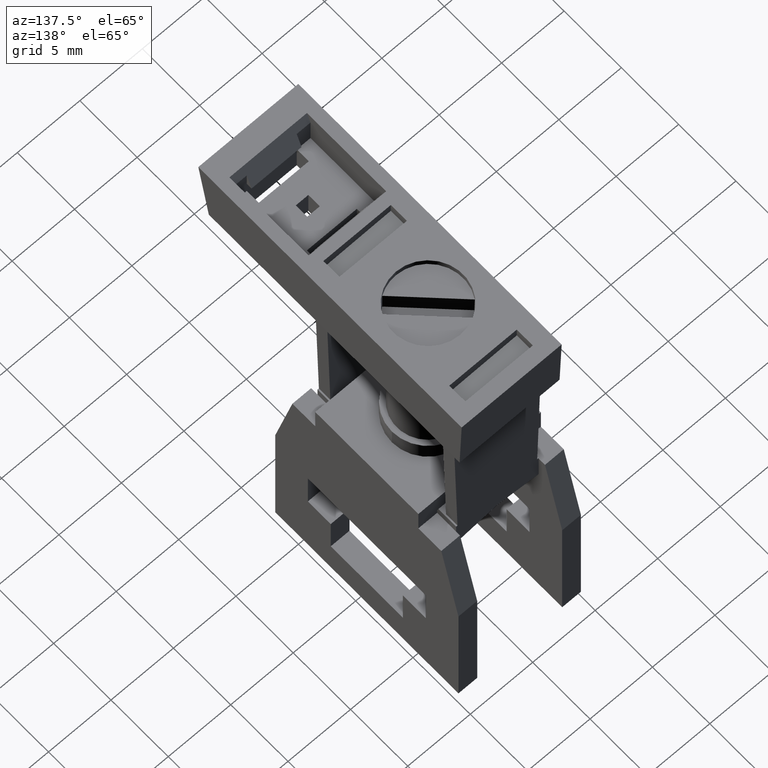
[diagram: clean part render]
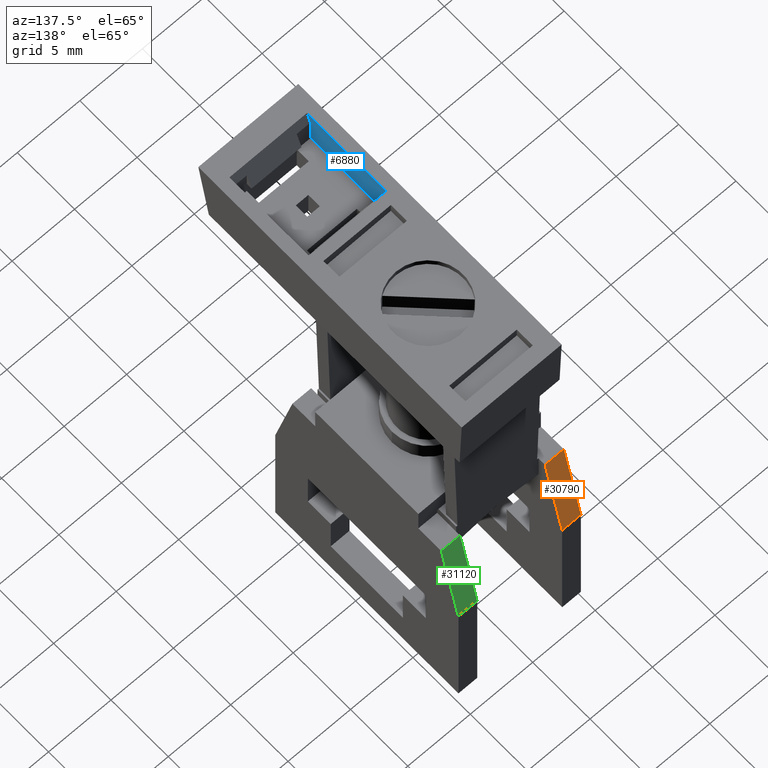
[diagram: same view with three faces highlighted in distinct colors, each labeled with its STEP entity id]
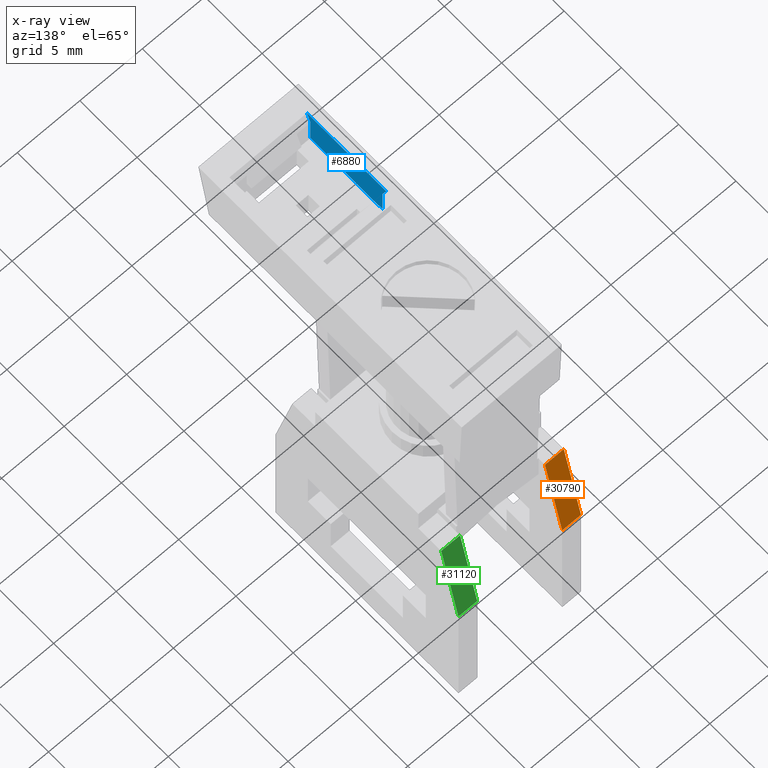
[diagram: x-ray of the same camera — body ghosted, the three highlighted faces saturated]
A machine part, auxiliary view with three faces highlighted in distinct colors.
The next image is the same camera in x-ray (body ghosted, the three faces saturated) — at least one of them is partly hidden behind the body in this view.
Their STEP definitions:

[orange] entity #30790 — the highlighted planar face has unit normal (0, -0.9763, -0.2164).
#13180=CARTESIAN_POINT('',(-9.8,17.5,1.5));
#13190=VERTEX_POINT('',#13180);
#13220=CARTESIAN_POINT('',(0.,17.5,1.5));
#13230=DIRECTION('',(1.,0.,0.));
#13240=VECTOR('',#13230,1.);
#13250=LINE('',#13220,#13240);
#13260=CARTESIAN_POINT('',(-8.3,17.5,1.50000000000001));
#13270=VERTEX_POINT('',#13260);
#13280=EDGE_CURVE('',#13190,#13270,#13250,.T.);
#19840=CARTESIAN_POINT('',(-9.8,10.7339372445069,4.0262807533651E-15));
#19850=VERTEX_POINT('',#19840);
#19880=CARTESIAN_POINT('',(-9.8,0.,-2.37965659625144));
#19890=DIRECTION('',(0.,0.976296007119933,0.216439613938103));
#19900=VECTOR('',#19890,1.);
#19910=LINE('',#19880,#19900);
#19920=EDGE_CURVE('',#19850,#13190,#19910,.T.);
#22040=CARTESIAN_POINT('',(-8.3,0.,-2.37965659625144));
#22050=DIRECTION('',(0.,-0.976296007119933,-0.216439613938103));
#22060=VECTOR('',#22050,1.);
#22070=LINE('',#22040,#22060);
#22080=CARTESIAN_POINT('',(-8.3,10.7339372445069,4.0262807533651E-15));
#22090=VERTEX_POINT('',#22080);
#22100=EDGE_CURVE('',#13270,#22090,#22070,.T.);
#23140=CARTESIAN_POINT('',(0.,10.7339372445069,0.));
#23150=DIRECTION('',(1.,0.,0.));
#23160=VECTOR('',#23150,1.);
#23170=LINE('',#23140,#23160);
#23180=EDGE_CURVE('',#19850,#22090,#23170,.T.);
#30680=CARTESIAN_POINT('',(-10.7800024,10.7339372445069,
3.5527136788005E-15));
#30690=DIRECTION('',(0.,-0.216439613938103,0.976296007119933));
#30700=DIRECTION('',(0.,0.976296007119933,0.216439613938103));
#30710=AXIS2_PLACEMENT_3D('',#30680,#30690,#30700);
#30720=PLANE('',#30710);
#30730=ORIENTED_EDGE('',*,*,#13280,.T.);
#30740=ORIENTED_EDGE('',*,*,#19920,.T.);
#30750=ORIENTED_EDGE('',*,*,#23180,.F.);
#30760=ORIENTED_EDGE('',*,*,#22100,.T.);
#30770=EDGE_LOOP('',(#30760,#30750,#30740,#30730));
#30780=FACE_OUTER_BOUND('',#30770,.T.);
#30790=ADVANCED_FACE('',(#30780),#30720,.F.);

[blue] entity #6880 — the highlighted planar face has unit normal (1, 0, -0).
#1640=CARTESIAN_POINT('',(-8.00000000000001,34.7,15.0422422833619));
#1650=VERTEX_POINT('',#1640);
#1680=CARTESIAN_POINT('',(-8.00000000000001,34.7,0.));
#1690=DIRECTION('',(-6.12323399573676E-17,1.04692687324466E-15,-1.));
#1700=VECTOR('',#1690,1.);
#1710=LINE('',#1680,#1700);
#1720=CARTESIAN_POINT('',(-8.,34.7,21.9579404685324));
#1730=VERTEX_POINT('',#1720);
#1740=EDGE_CURVE('',#1730,#1650,#1710,.T.);
#5180=CARTESIAN_POINT('',(-8.00000000000001,33.8539405161709,
15.3501827518943));
#5190=VERTEX_POINT('',#5180);
#5220=CARTESIAN_POINT('',(-8.,5.7,25.5973790770817));
#5230=DIRECTION('',(-2.77555756156289E-17,0.939692620785909,
-0.342020143325668));
#5240=VECTOR('',#5230,1.);
#5250=LINE('',#5220,#5240);
#5260=EDGE_CURVE('',#5190,#1650,#5250,.T.);
#5950=CARTESIAN_POINT('',(-8.,31.7,15.3501827518943));
#5960=VERTEX_POINT('',#5950);
#6010=CARTESIAN_POINT('',(-8.00000000000001,5.7,15.3501827518943));
#6020=DIRECTION('',(-9.86076131526265E-32,-1.,-1.04692687324466E-15));
#6030=VECTOR('',#6020,1.);
#6040=LINE('',#6010,#6030);
#6050=EDGE_CURVE('',#5190,#5960,#6040,.T.);
#6560=CARTESIAN_POINT('',(-8.,34.7,22.0255517634913));
#6570=DIRECTION('',(1.,0.,-6.12323399573677E-17));
#6580=DIRECTION('',(6.12323399573677E-17,-1.04692687324466E-15,1.));
#6590=AXIS2_PLACEMENT_3D('',#6560,#6570,#6580);
#6600=PLANE('',#6590);
#6610=CARTESIAN_POINT('',(-8.00000000000001,31.7,7.99981724810573));
#6620=DIRECTION('',(6.12323399573677E-17,-1.04692687324466E-15,1.));
#6630=VECTOR('',#6620,1.);
#6640=LINE('',#6610,#6630);
#6650=CARTESIAN_POINT('',(-8.,31.7,21.65));
#6660=VERTEX_POINT('',#6650);
#6670=EDGE_CURVE('',#5960,#6660,#6640,.T.);
#6680=ORIENTED_EDGE('',*,*,#6670,.F.);
#6690=CARTESIAN_POINT('',(-8.00000000000001,5.7,21.65));
#6700=DIRECTION('',(9.86076131526265E-32,1.,1.04692687324466E-15));
#6710=VECTOR('',#6700,1.);
#6720=LINE('',#6690,#6710);
#6730=CARTESIAN_POINT('',(-8.00000000000001,33.8539405161709,21.65));
#6740=VERTEX_POINT('',#6730);
#6750=EDGE_CURVE('',#6660,#6740,#6720,.T.);
#6760=ORIENTED_EDGE('',*,*,#6750,.F.);
#6770=CARTESIAN_POINT('',(-8.00000000000001,5.7,11.4028036748125));
#6780=DIRECTION('',(-2.77555756156289E-17,-0.939692620785908,
-0.342020143325671));
#6790=VECTOR('',#6780,1.);
#6800=LINE('',#6770,#6790);
#6810=EDGE_CURVE('',#1730,#6740,#6800,.T.);
#6820=ORIENTED_EDGE('',*,*,#6810,.T.);
#6830=ORIENTED_EDGE('',*,*,#1740,.F.);
#6840=ORIENTED_EDGE('',*,*,#5260,.T.);
#6850=ORIENTED_EDGE('',*,*,#6050,.F.);
#6860=EDGE_LOOP('',(#6850,#6840,#6830,#6820,#6760,#6680));
#6870=FACE_OUTER_BOUND('',#6860,.T.);
#6880=ADVANCED_FACE('',(#6870),#6600,.T.);

[green] entity #31120 — the highlighted planar face has unit normal (0, -0.9763, -0.2164).
#23140=CARTESIAN_POINT('',(0.,10.7339372445069,0.));
#23150=DIRECTION('',(1.,0.,0.));
#23160=VECTOR('',#23150,1.);
#23170=LINE('',#23140,#23160);
#26170=CARTESIAN_POINT('',(-1.5,10.7339372445069,4.0262807533651E-15));
#26180=VERTEX_POINT('',#26170);
#26210=CARTESIAN_POINT('',(-1.5,0.,-2.37965659625144));
#26220=DIRECTION('',(0.,0.976296007119933,0.216439613938103));
#26230=VECTOR('',#26220,1.);
#26240=LINE('',#26210,#26230);
#26250=CARTESIAN_POINT('',(-1.5,17.5,1.5));
#26260=VERTEX_POINT('',#26250);
#26270=EDGE_CURVE('',#26180,#26260,#26240,.T.);
#27880=CARTESIAN_POINT('',(0.,17.5,1.5));
#27890=VERTEX_POINT('',#27880);
#27920=CARTESIAN_POINT('',(0.,0.,-2.37965659625144));
#27930=DIRECTION('',(0.,-0.976296007119933,-0.216439613938103));
#27940=VECTOR('',#27930,1.);
#27950=LINE('',#27920,#27940);
#27960=CARTESIAN_POINT('',(0.,10.7339372445069,4.0262807533651E-15));
#27970=VERTEX_POINT('',#27960);
#27980=EDGE_CURVE('',#27890,#27970,#27950,.T.);
#29600=EDGE_CURVE('',#26180,#27970,#23170,.T.);
#30680=CARTESIAN_POINT('',(-10.7800024,10.7339372445069,
3.5527136788005E-15));
#30690=DIRECTION('',(0.,-0.216439613938103,0.976296007119933));
#30700=DIRECTION('',(0.,0.976296007119933,0.216439613938103));
#30710=AXIS2_PLACEMENT_3D('',#30680,#30690,#30700);
#30720=PLANE('',#30710);
#30880=CARTESIAN_POINT('',(0.,17.5,1.5));
#30890=DIRECTION('',(1.,0.,0.));
#30900=VECTOR('',#30890,1.);
#30910=LINE('',#30880,#30900);
#30920=EDGE_CURVE('',#26260,#27890,#30910,.T.);
#31060=ORIENTED_EDGE('',*,*,#26270,.T.);
#31070=ORIENTED_EDGE('',*,*,#29600,.F.);
#31080=ORIENTED_EDGE('',*,*,#27980,.T.);
#31090=ORIENTED_EDGE('',*,*,#30920,.T.);
#31100=EDGE_LOOP('',(#31090,#31080,#31070,#31060));
#31110=FACE_OUTER_BOUND('',#31100,.T.);
#31120=ADVANCED_FACE('',(#31110),#30720,.F.);